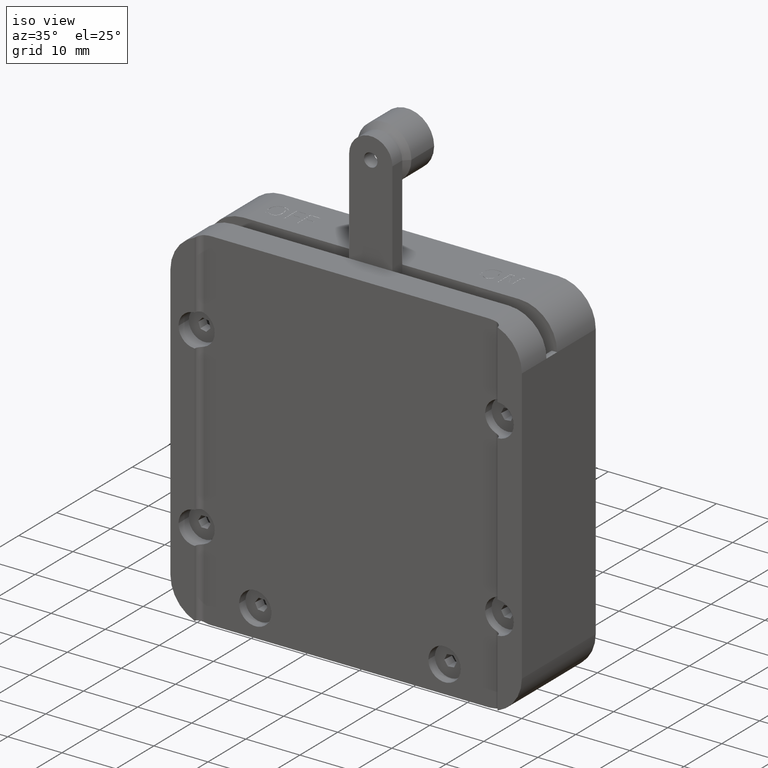
[diagram: clean part render]
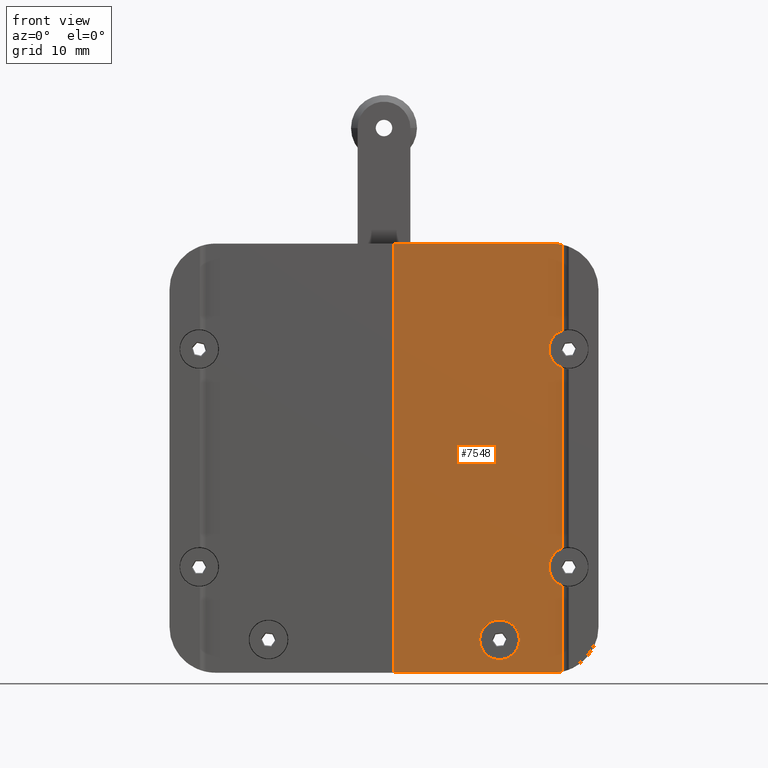
[diagram: tour spotlight — one face highlighted and labeled with its STEP entity id]
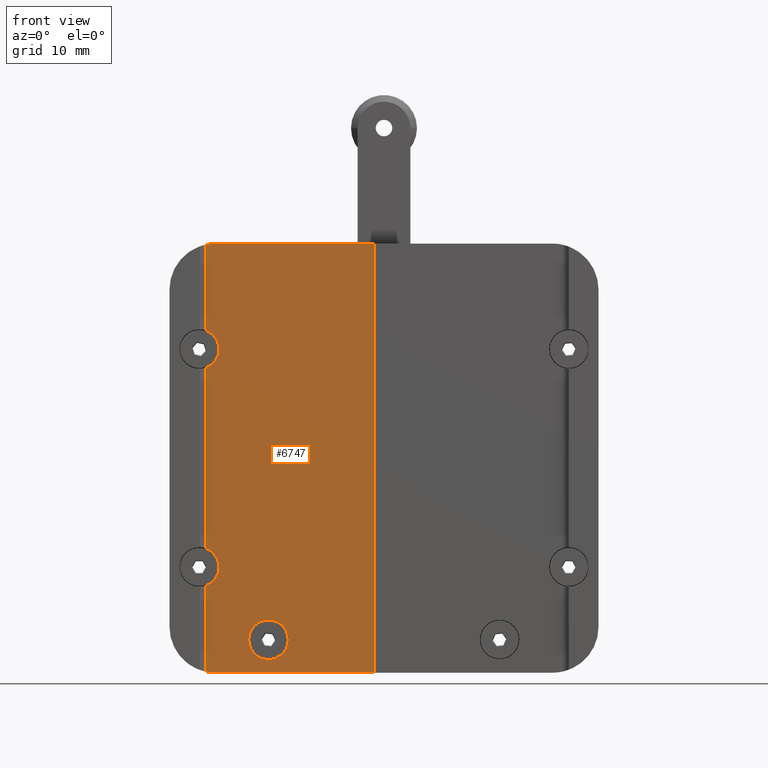
[diagram: tour spotlight — one face highlighted and labeled with its STEP entity id]
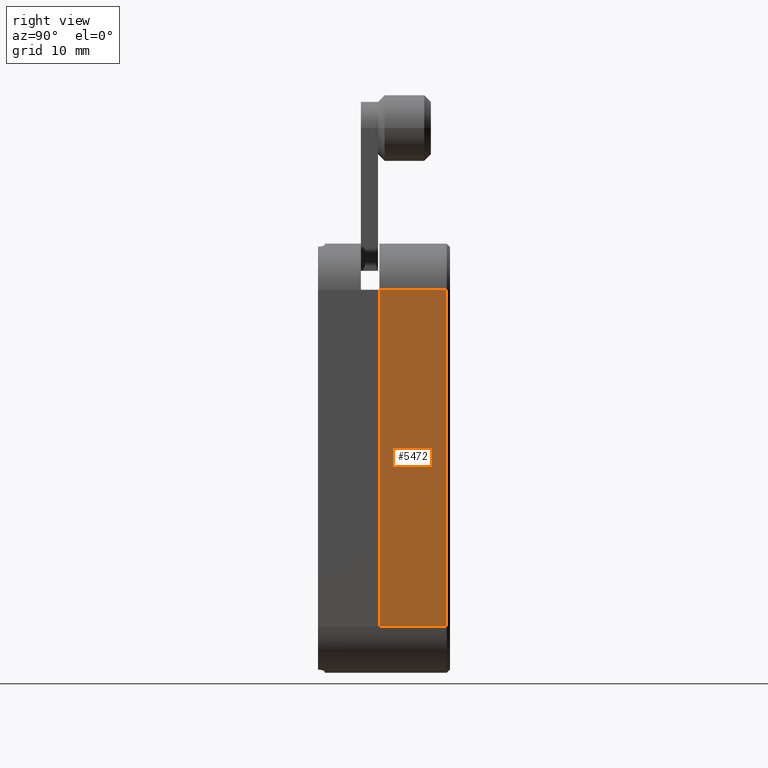
[diagram: tour spotlight — one face highlighted and labeled with its STEP entity id]
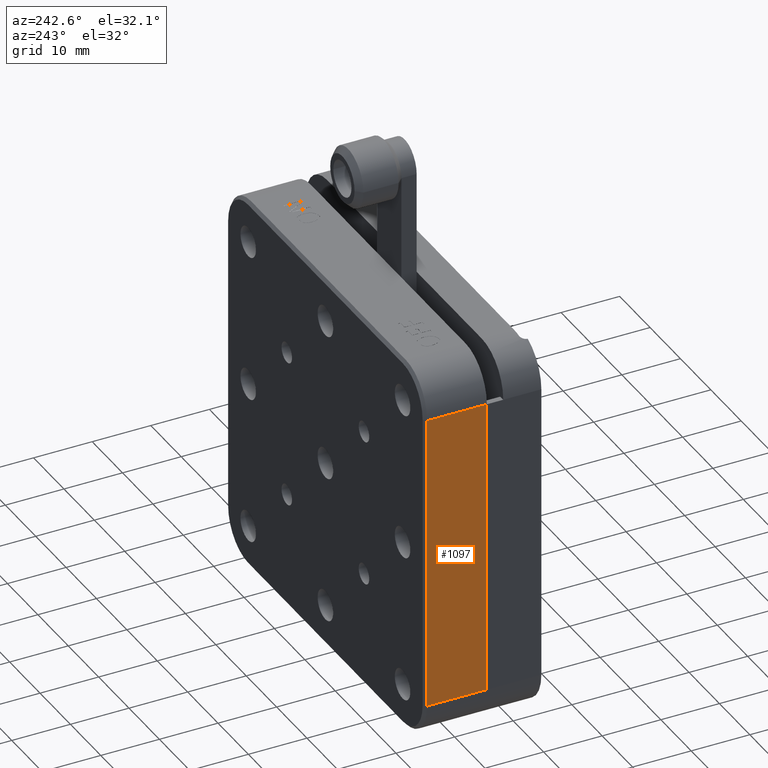
[diagram: tour spotlight — one face highlighted and labeled with its STEP entity id]
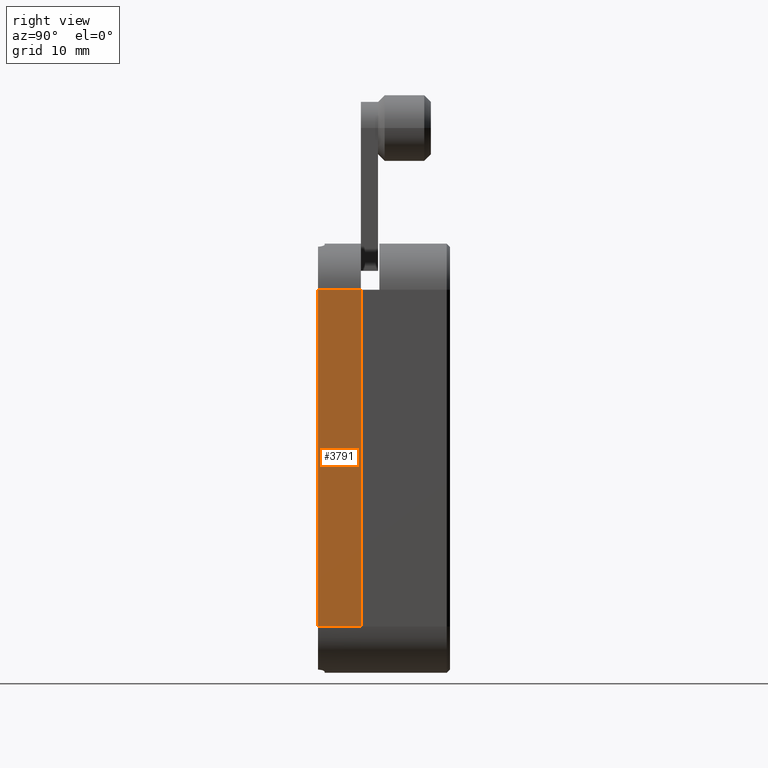
[diagram: tour spotlight — one face highlighted and labeled with its STEP entity id]
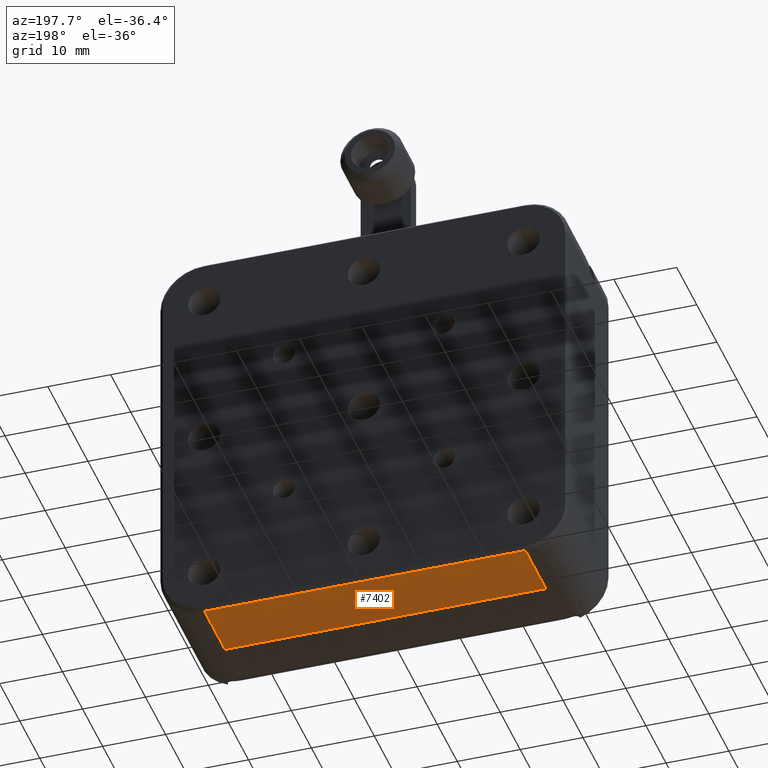
[diagram: tour spotlight — one face highlighted and labeled with its STEP entity id]
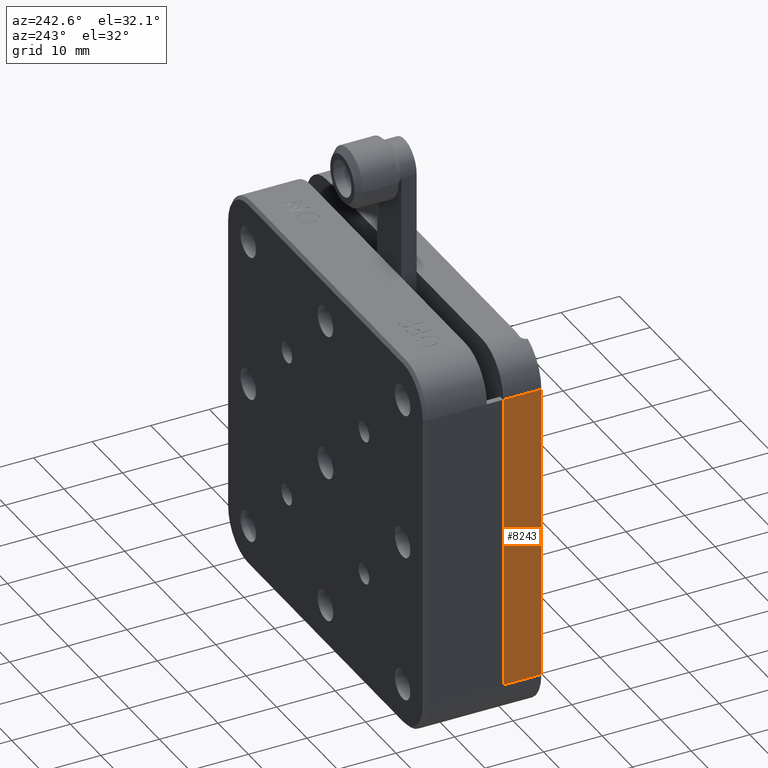
[diagram: tour spotlight — one face highlighted and labeled with its STEP entity id]
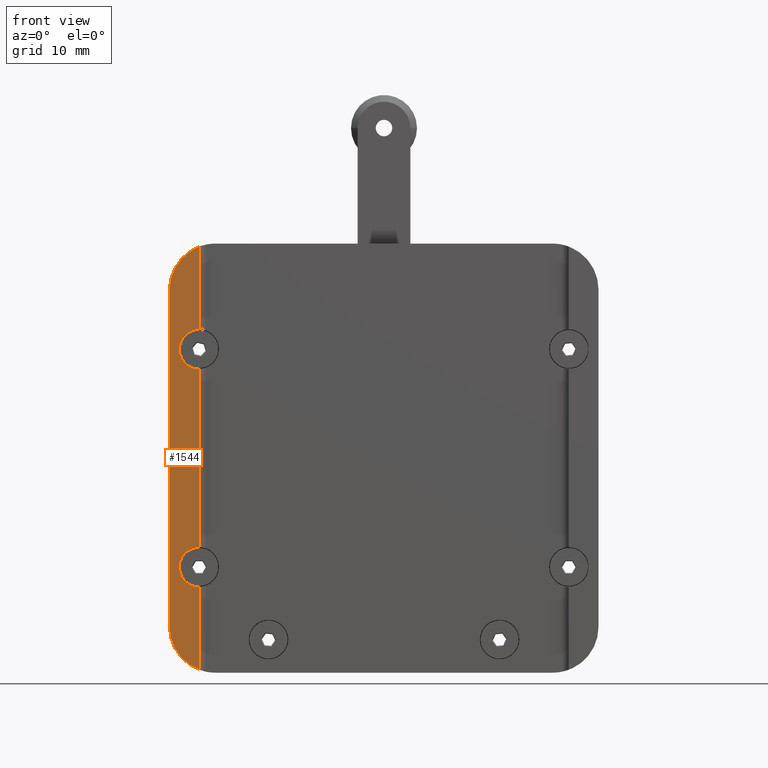
[diagram: tour spotlight — one face highlighted and labeled with its STEP entity id]
A machine part: a face-by-face anatomy tour. The part has 173 B-rep faces; the first image is the clean iso view, then the 8 largest visible faces are spotlighted one at a time (largest first), each with its STEP entity span.

Face 1 — front view, entity #7548. In plain terms, the highlighted planar face has unit normal (0, -1, 0).
Definition (entity closure, byte-faithful):
#83 = ORIENTED_EDGE ( 'NONE', *, *, #5253, .T. ) ;
#118 = CARTESIAN_POINT ( 'NONE',  ( 27.00000000000003900, -2.500000000000004400, 19.32842712474616300 ) ) ;
#214 = CIRCLE ( 'NONE', #3948, 3.000000000000006200 ) ;
#361 = AXIS2_PLACEMENT_3D ( 'NONE', #1779, #6818, #8061 ) ;
#461 = EDGE_CURVE ( 'NONE', #1115, #5707, #214, .T. ) ;
#571 = LINE ( 'NONE', #1066, #7114 ) ;
#582 = CARTESIAN_POINT ( 'NONE',  ( 25.00000000000001800, -2.500000000000003600, 16.49999999999994300 ) ) ;
#862 = AXIS2_PLACEMENT_3D ( 'NONE', #4422, #6230, #7494 ) ;
#888 = CIRCLE ( 'NONE', #361, 3.000000000000006200 ) ;
#953 = CARTESIAN_POINT ( 'NONE',  ( 1.499999999999950900, -2.500000000000004000, 32.49999999999999300 ) ) ;
#1030 = CARTESIAN_POINT ( 'NONE',  ( 20.49999999999993600, -2.500000000000004000, -27.49999999999998200 ) ) ;
#1066 = CARTESIAN_POINT ( 'NONE',  ( 28.00000000000003200, -2.500000000000005800, -32.50000000000003600 ) ) ;
#1115 = VERTEX_POINT ( 'NONE', #582 ) ;
#1147 = CARTESIAN_POINT ( 'NONE',  ( 17.50000000000000000, -2.500000000000004000, -27.49999999999995400 ) ) ;
#1223 = VERTEX_POINT ( 'NONE', #118 ) ;
#1225 = DIRECTION ( 'NONE',  ( 2.428612866367530500E-017, -1.000000000000000000, -3.252606517456514300E-019 ) ) ;
#1251 = CARTESIAN_POINT ( 'NONE',  ( 28.00000000000002500, -2.500000000000003600, 16.49999999999996400 ) ) ;
#1472 = ORIENTED_EDGE ( 'NONE', *, *, #7621, .T. ) ;
#1542 = EDGE_CURVE ( 'NONE', #4717, #6100, #6855, .T. ) ;
#1561 = CARTESIAN_POINT ( 'NONE',  ( -7.632783294297951200E-014, -2.500000000000003600, 5.421010862427522200E-017 ) ) ;
#1605 = DIRECTION ( 'NONE',  ( -1.000000000000000000, 2.428612866367522800E-017, 1.262079091408903800E-018 ) ) ;
#1618 = AXIS2_PLACEMENT_3D ( 'NONE', #1986, #3263, #2648 ) ;
#1664 = ORIENTED_EDGE ( 'NONE', *, *, #3231, .F. ) ;
#1779 = CARTESIAN_POINT ( 'NONE',  ( 28.00000000000002500, -2.500000000000003600, 16.49999999999996400 ) ) ;
#1916 = DIRECTION ( 'NONE',  ( 2.428612866367530500E-017, -1.000000000000000000, -3.252606517456514300E-019 ) ) ;
#1952 = VECTOR ( 'NONE', #2763, 1000.000000000000000 ) ;
#1986 = CARTESIAN_POINT ( 'NONE',  ( 28.00000000000002800, -2.500000000000002700, -16.49999999999995400 ) ) ;
#2000 = LINE ( 'NONE', #5931, #3384 ) ;
#2124 = CARTESIAN_POINT ( 'NONE',  ( 1.499999999999952700, -2.500000000000002700, 33.00000000000002100 ) ) ;
#2384 = FACE_OUTER_BOUND ( 'NONE', #5341, .T. ) ;
#2466 = EDGE_CURVE ( 'NONE', #7465, #6323, #571, .T. ) ;
#2508 = VECTOR ( 'NONE', #4566, 1000.000000000000000 ) ;
#2555 = CARTESIAN_POINT ( 'NONE',  ( 27.00000000000003900, -2.500000000000006200, -5.421010862427522200E-017 ) ) ;
#2648 = DIRECTION ( 'NONE',  ( 0.0000000000000000000, 0.0000000000000000000, -1.000000000000000000 ) ) ;
#2671 = ORIENTED_EDGE ( 'NONE', *, *, #7476, .T. ) ;
#2694 = CARTESIAN_POINT ( 'NONE',  ( 25.50000000000002100, -2.500000000000005800, -25.50000000000001400 ) ) ;
#2763 = DIRECTION ( 'NONE',  ( 1.097754699641572500E-018, -2.168404344971007400E-019, -1.000000000000000000 ) ) ;
#2775 = CARTESIAN_POINT ( 'NONE',  ( 25.50000000000001100, -2.500000000000003600, -32.49999999999999300 ) ) ;
#2777 = DIRECTION ( 'NONE',  ( 0.0000000000000000000, 0.0000000000000000000, -1.000000000000000000 ) ) ;
#2867 = ORIENTED_EDGE ( 'NONE', *, *, #461, .F. ) ;
#3026 = VECTOR ( 'NONE', #1605, 1000.000000000000000 ) ;
#3073 = CARTESIAN_POINT ( 'NONE',  ( 27.00000000000003200, -2.500000000000004000, -32.33739716558871200 ) ) ;
#3218 = DIRECTION ( 'NONE',  ( 0.0000000000000000000, 0.0000000000000000000, -1.000000000000000000 ) ) ;
#3229 = LINE ( 'NONE', #3737, #5700 ) ;
#3231 = EDGE_CURVE ( 'NONE', #5814, #7604, #6113, .T. ) ;
#3263 = DIRECTION ( 'NONE',  ( 2.428612866367530500E-017, -1.000000000000000000, -3.252606517456514300E-019 ) ) ;
#3384 = VECTOR ( 'NONE', #6544, 1000.000000000000000 ) ;
#3568 = CARTESIAN_POINT ( 'NONE',  ( 27.00000000000003900, -2.500000000000004400, 32.33739716558866200 ) ) ;
#3590 = ORIENTED_EDGE ( 'NONE', *, *, #4737, .F. ) ;
#3631 = LINE ( 'NONE', #2124, #1952 ) ;
#3735 = VERTEX_POINT ( 'NONE', #3568 ) ;
#3737 = CARTESIAN_POINT ( 'NONE',  ( 27.00000000000003900, -2.500000000000006200, -5.421010862427522200E-017 ) ) ;
#3793 = ORIENTED_EDGE ( 'NONE', *, *, #4114, .F. ) ;
#3839 = CARTESIAN_POINT ( 'NONE',  ( 25.00000000000002100, -2.500000000000002700, -16.49999999999996400 ) ) ;
#3948 = AXIS2_PLACEMENT_3D ( 'NONE', #1251, #1225, #5659 ) ;
#3982 = AXIS2_PLACEMENT_3D ( 'NONE', #1561, #7226, #7911 ) ;
#4027 = DIRECTION ( 'NONE',  ( 2.428612866367530500E-017, -1.000000000000000000, -3.252606517456514300E-019 ) ) ;
#4067 = CIRCLE ( 'NONE', #862, 3.000000000000006200 ) ;
#4114 = EDGE_CURVE ( 'NONE', #6671, #7889, #4067, .T. ) ;
#4125 = CARTESIAN_POINT ( 'NONE',  ( 27.00000000000003200, -2.500000000000005300, -19.32842712474614900 ) ) ;
#4224 = DIRECTION ( 'NONE',  ( 1.000000000000000000, -2.428612866367522800E-017, -1.262079091408903800E-018 ) ) ;
#4315 = CARTESIAN_POINT ( 'NONE',  ( 1.499999999999952700, -2.500000000000004900, -32.50000000000000000 ) ) ;
#4401 = CIRCLE ( 'NONE', #7666, 7.000000000000006200 ) ;
#4422 = CARTESIAN_POINT ( 'NONE',  ( 28.00000000000002800, -2.500000000000002700, -16.49999999999995400 ) ) ;
#4556 = ORIENTED_EDGE ( 'NONE', *, *, #2466, .T. ) ;
#4566 = DIRECTION ( 'NONE',  ( -1.097754699641572500E-018, 2.168404344971007400E-019, 1.000000000000000000 ) ) ;
#4652 = DIRECTION ( 'NONE',  ( 0.0000000000000000000, 0.0000000000000000000, -1.000000000000000000 ) ) ;
#4717 = VERTEX_POINT ( 'NONE', #3073 ) ;
#4727 = PLANE ( 'NONE',  #3982 ) ;
#4737 = EDGE_CURVE ( 'NONE', #1223, #1115, #888, .T. ) ;
#4755 = ORIENTED_EDGE ( 'NONE', *, *, #6530, .F. ) ;
#4767 = CARTESIAN_POINT ( 'NONE',  ( 14.50000000000006800, -2.500000000000004000, -27.49999999999998200 ) ) ;
#4880 = CARTESIAN_POINT ( 'NONE',  ( 28.00000000000001400, -2.500000000000004000, 32.49999999999999300 ) ) ;
#4920 = LINE ( 'NONE', #4880, #3026 ) ;
#4958 = DIRECTION ( 'NONE',  ( 0.0000000000000000000, 0.0000000000000000000, -1.000000000000000000 ) ) ;
#4971 = DIRECTION ( 'NONE',  ( -1.097754699641572500E-018, 2.168404344971007400E-019, 1.000000000000000000 ) ) ;
#5072 = CARTESIAN_POINT ( 'NONE',  ( 17.50000000000000000, -2.500000000000004000, -27.49999999999995400 ) ) ;
#5100 = EDGE_CURVE ( 'NONE', #7604, #5814, #6631, .T. ) ;
#5253 = EDGE_CURVE ( 'NONE', #1223, #3735, #2000, .T. ) ;
#5262 = CARTESIAN_POINT ( 'NONE',  ( 25.50000000000002100, -2.500000000000003600, 25.49999999999999600 ) ) ;
#5341 = EDGE_LOOP ( 'NONE', ( #3590, #83, #1472, #5910, #6931, #4556, #2671, #7147, #4755, #3793, #7160, #2867 ) ) ;
#5370 = FACE_BOUND ( 'NONE', #5682, .T. ) ;
#5593 = AXIS2_PLACEMENT_3D ( 'NONE', #1147, #5665, #4958 ) ;
#5659 = DIRECTION ( 'NONE',  ( 0.0000000000000000000, 0.0000000000000000000, -1.000000000000000000 ) ) ;
#5665 = DIRECTION ( 'NONE',  ( 2.428612866367530500E-017, -1.000000000000000000, -3.252606517456514300E-019 ) ) ;
#5682 = EDGE_LOOP ( 'NONE', ( #5868, #1664 ) ) ;
#5700 = VECTOR ( 'NONE', #4971, 1000.000000000000000 ) ;
#5707 = VERTEX_POINT ( 'NONE', #7016 ) ;
#5797 = CIRCLE ( 'NONE', #1618, 3.000000000000006200 ) ;
#5814 = VERTEX_POINT ( 'NONE', #4767 ) ;
#5868 = ORIENTED_EDGE ( 'NONE', *, *, #5100, .F. ) ;
#5881 = EDGE_CURVE ( 'NONE', #7806, #6209, #4920, .T. ) ;
#5910 = ORIENTED_EDGE ( 'NONE', *, *, #5881, .T. ) ;
#5931 = CARTESIAN_POINT ( 'NONE',  ( 27.00000000000003900, -2.500000000000006200, -5.421010862427522200E-017 ) ) ;
#6100 = VERTEX_POINT ( 'NONE', #4125 ) ;
#6113 = CIRCLE ( 'NONE', #5593, 2.999999999999933400 ) ;
#6209 = VERTEX_POINT ( 'NONE', #953 ) ;
#6229 = EDGE_CURVE ( 'NONE', #6209, #7465, #3631, .T. ) ;
#6230 = DIRECTION ( 'NONE',  ( 2.428612866367530500E-017, -1.000000000000000000, -3.252606517456514300E-019 ) ) ;
#6323 = VERTEX_POINT ( 'NONE', #2775 ) ;
#6508 = AXIS2_PLACEMENT_3D ( 'NONE', #5072, #1916, #3218 ) ;
#6518 = EDGE_CURVE ( 'NONE', #6671, #5707, #3229, .T. ) ;
#6530 = EDGE_CURVE ( 'NONE', #7889, #6100, #5797, .T. ) ;
#6544 = DIRECTION ( 'NONE',  ( -1.097754699641572500E-018, 2.168404344971007400E-019, 1.000000000000000000 ) ) ;
#6631 = CIRCLE ( 'NONE', #6508, 2.999999999999933400 ) ;
#6648 = CIRCLE ( 'NONE', #8046, 7.000000000000006200 ) ;
#6671 = VERTEX_POINT ( 'NONE', #7662 ) ;
#6801 = CARTESIAN_POINT ( 'NONE',  ( 25.50000000000001800, -2.500000000000003600, 32.49999999999999300 ) ) ;
#6818 = DIRECTION ( 'NONE',  ( 2.428612866367530500E-017, -1.000000000000000000, -3.252606517456514300E-019 ) ) ;
#6855 = LINE ( 'NONE', #2555, #2508 ) ;
#6931 = ORIENTED_EDGE ( 'NONE', *, *, #6229, .T. ) ;
#7016 = CARTESIAN_POINT ( 'NONE',  ( 27.00000000000002500, -2.500000000000002700, 13.67157287525377300 ) ) ;
#7112 = DIRECTION ( 'NONE',  ( 2.428612866367530500E-017, -1.000000000000000000, -3.252606517456514300E-019 ) ) ;
#7114 = VECTOR ( 'NONE', #4224, 1000.000000000000000 ) ;
#7147 = ORIENTED_EDGE ( 'NONE', *, *, #1542, .T. ) ;
#7160 = ORIENTED_EDGE ( 'NONE', *, *, #6518, .T. ) ;
#7226 = DIRECTION ( 'NONE',  ( 2.428612866367530500E-017, -1.000000000000000000, 2.168404344971007700E-019 ) ) ;
#7465 = VERTEX_POINT ( 'NONE', #4315 ) ;
#7476 = EDGE_CURVE ( 'NONE', #6323, #4717, #4401, .T. ) ;
#7494 = DIRECTION ( 'NONE',  ( 0.0000000000000000000, 0.0000000000000000000, -1.000000000000000000 ) ) ;
#7548 = ADVANCED_FACE ( 'NONE', ( #5370, #2384 ), #4727, .T. ) ;
#7604 = VERTEX_POINT ( 'NONE', #1030 ) ;
#7621 = EDGE_CURVE ( 'NONE', #3735, #7806, #6648, .T. ) ;
#7662 = CARTESIAN_POINT ( 'NONE',  ( 27.00000000000002500, -2.500000000000002700, -13.67157287525376200 ) ) ;
#7666 = AXIS2_PLACEMENT_3D ( 'NONE', #2694, #7112, #4652 ) ;
#7806 = VERTEX_POINT ( 'NONE', #6801 ) ;
#7889 = VERTEX_POINT ( 'NONE', #3839 ) ;
#7911 = DIRECTION ( 'NONE',  ( 1.097754699641572500E-018, -2.168404344971007400E-019, -1.000000000000000000 ) ) ;
#8046 = AXIS2_PLACEMENT_3D ( 'NONE', #5262, #4027, #2777 ) ;
#8061 = DIRECTION ( 'NONE',  ( 0.0000000000000000000, 0.0000000000000000000, -1.000000000000000000 ) ) ;

Face 2 — front view, entity #6747. In plain terms, the highlighted planar face has unit normal (0, -1, 0).
Definition (entity closure, byte-faithful):
#94 = EDGE_CURVE ( 'NONE', #7858, #6640, #5591, .T. ) ;
#99 = CARTESIAN_POINT ( 'NONE',  ( -28.00000000000001100, -2.500000000000008400, 16.49999999999995700 ) ) ;
#128 = AXIS2_PLACEMENT_3D ( 'NONE', #3754, #3138, #659 ) ;
#178 = CARTESIAN_POINT ( 'NONE',  ( 28.00000000000004300, -2.500000000000008400, 32.50000000000000700 ) ) ;
#228 = CARTESIAN_POINT ( 'NONE',  ( -27.00000000000000400, -2.500000000000008900, -13.67157287525377300 ) ) ;
#320 = DIRECTION ( 'NONE',  ( 1.000000000000000000, 8.673617379884027800E-018, 5.090668012998340200E-019 ) ) ;
#455 = CARTESIAN_POINT ( 'NONE',  ( -28.00000000000001800, -2.500000000000009800, -16.49999999999995700 ) ) ;
#460 = AXIS2_PLACEMENT_3D ( 'NONE', #7078, #665, #7668 ) ;
#601 = AXIS2_PLACEMENT_3D ( 'NONE', #7190, #5188, #4613 ) ;
#635 = DIRECTION ( 'NONE',  ( 0.0000000000000000000, 0.0000000000000000000, -1.000000000000000000 ) ) ;
#659 = DIRECTION ( 'NONE',  ( 0.0000000000000000000, 0.0000000000000000000, -1.000000000000000000 ) ) ;
#665 = DIRECTION ( 'NONE',  ( 1.734723475976804800E-018, -1.000000000000000000, -7.589415207398521400E-019 ) ) ;
#734 = VERTEX_POINT ( 'NONE', #2343 ) ;
#757 = DIRECTION ( 'NONE',  ( 0.0000000000000000000, 0.0000000000000000000, -1.000000000000000000 ) ) ;
#871 = DIRECTION ( 'NONE',  ( -2.286988957586610000E-019, -7.589415207398527200E-019, -1.000000000000000000 ) ) ;
#1007 = LINE ( 'NONE', #4680, #2506 ) ;
#1121 = CIRCLE ( 'NONE', #3268, 2.999999999999999100 ) ;
#1153 = CARTESIAN_POINT ( 'NONE',  ( -20.50000000000000000, -2.500000000000008000, -27.49999999999995700 ) ) ;
#1158 = EDGE_CURVE ( 'NONE', #6752, #3822, #4293, .T. ) ;
#1245 = CARTESIAN_POINT ( 'NONE',  ( -28.00000000000001100, -2.500000000000008400, 16.49999999999995700 ) ) ;
#1249 = AXIS2_PLACEMENT_3D ( 'NONE', #1245, #3782, #635 ) ;
#1282 = VERTEX_POINT ( 'NONE', #3665 ) ;
#1408 = CARTESIAN_POINT ( 'NONE',  ( -27.00000000000002500, -2.500000000000008400, -32.33739716558869800 ) ) ;
#1575 = VECTOR ( 'NONE', #3226, 1000.000000000000000 ) ;
#1579 = EDGE_CURVE ( 'NONE', #3843, #6824, #5098, .T. ) ;
#1680 = AXIS2_PLACEMENT_3D ( 'NONE', #4371, #5692, #8254 ) ;
#1709 = ORIENTED_EDGE ( 'NONE', *, *, #3869, .T. ) ;
#1726 = DIRECTION ( 'NONE',  ( 0.0000000000000000000, 0.0000000000000000000, -1.000000000000000000 ) ) ;
#1737 = CARTESIAN_POINT ( 'NONE',  ( -25.00000000000001400, -2.500000000000008400, 16.49999999999995700 ) ) ;
#1796 = DIRECTION ( 'NONE',  ( -2.286988957586610000E-019, -7.589415207398527200E-019, -1.000000000000000000 ) ) ;
#1819 = ORIENTED_EDGE ( 'NONE', *, *, #4349, .T. ) ;
#1946 = VERTEX_POINT ( 'NONE', #228 ) ;
#1972 = DIRECTION ( 'NONE',  ( 1.734723475976804800E-018, -1.000000000000000000, -7.589415207398521400E-019 ) ) ;
#2117 = CARTESIAN_POINT ( 'NONE',  ( -27.00000000000000400, -2.500000000000008400, 19.32842712474615600 ) ) ;
#2146 = ORIENTED_EDGE ( 'NONE', *, *, #1158, .F. ) ;
#2202 = VECTOR ( 'NONE', #871, 1000.000000000000000 ) ;
#2284 = CIRCLE ( 'NONE', #5979, 2.999999999999999100 ) ;
#2290 = EDGE_LOOP ( 'NONE', ( #7673, #3984, #2401, #4323, #2799, #3103, #6761, #1709, #2901, #4094, #1819, #3794 ) ) ;
#2294 = VECTOR ( 'NONE', #7014, 1000.000000000000000 ) ;
#2343 = CARTESIAN_POINT ( 'NONE',  ( -25.50000000000002500, -2.500000000000009300, -32.50000000000001400 ) ) ;
#2377 = VERTEX_POINT ( 'NONE', #6778 ) ;
#2401 = ORIENTED_EDGE ( 'NONE', *, *, #7749, .F. ) ;
#2417 = CARTESIAN_POINT ( 'NONE',  ( -27.00000000000001400, -2.500000000000009300, 0.0000000000000000000 ) ) ;
#2506 = VECTOR ( 'NONE', #320, 1000.000000000000000 ) ;
#2528 = CARTESIAN_POINT ( 'NONE',  ( -27.00000000000001800, -2.500000000000008400, -19.32842712474616300 ) ) ;
#2587 = EDGE_LOOP ( 'NONE', ( #2146, #5109 ) ) ;
#2799 = ORIENTED_EDGE ( 'NONE', *, *, #94, .T. ) ;
#2901 = ORIENTED_EDGE ( 'NONE', *, *, #6661, .T. ) ;
#3048 = CARTESIAN_POINT ( 'NONE',  ( -28.00000000000001800, -2.500000000000009800, -16.49999999999995700 ) ) ;
#3103 = ORIENTED_EDGE ( 'NONE', *, *, #6986, .T. ) ;
#3138 = DIRECTION ( 'NONE',  ( 1.734723475976804800E-018, -1.000000000000000000, -7.589415207398521400E-019 ) ) ;
#3226 = DIRECTION ( 'NONE',  ( 2.286988957586610000E-019, 7.589415207398527200E-019, 1.000000000000000000 ) ) ;
#3268 = AXIS2_PLACEMENT_3D ( 'NONE', #99, #4568, #757 ) ;
#3269 = CARTESIAN_POINT ( 'NONE',  ( -17.50000000000000000, -2.500000000000008000, -27.50000000000000700 ) ) ;
#3278 = CARTESIAN_POINT ( 'NONE',  ( -1.499999999999971800, -2.500000000000008000, 33.00000000000000000 ) ) ;
#3301 = DIRECTION ( 'NONE',  ( 0.0000000000000000000, 0.0000000000000000000, -1.000000000000000000 ) ) ;
#3665 = CARTESIAN_POINT ( 'NONE',  ( -27.00000000000000400, -2.500000000000007500, 13.67157287525376600 ) ) ;
#3754 = CARTESIAN_POINT ( 'NONE',  ( -25.50000000000002100, -2.500000000000007100, -25.50000000000001800 ) ) ;
#3782 = DIRECTION ( 'NONE',  ( 1.734723475976804800E-018, -1.000000000000000000, -7.589415207398521400E-019 ) ) ;
#3794 = ORIENTED_EDGE ( 'NONE', *, *, #7799, .F. ) ;
#3818 = VECTOR ( 'NONE', #7605, 1000.000000000000000 ) ;
#3822 = VERTEX_POINT ( 'NONE', #1153 ) ;
#3843 = VERTEX_POINT ( 'NONE', #4497 ) ;
#3869 = EDGE_CURVE ( 'NONE', #3911, #7236, #7504, .T. ) ;
#3911 = VERTEX_POINT ( 'NONE', #5191 ) ;
#3984 = ORIENTED_EDGE ( 'NONE', *, *, #8161, .T. ) ;
#4094 = ORIENTED_EDGE ( 'NONE', *, *, #1579, .T. ) ;
#4205 = EDGE_CURVE ( 'NONE', #1282, #7579, #1121, .T. ) ;
#4212 = FACE_BOUND ( 'NONE', #2587, .T. ) ;
#4293 = CIRCLE ( 'NONE', #4843, 2.999999999999999100 ) ;
#4323 = ORIENTED_EDGE ( 'NONE', *, *, #7100, .F. ) ;
#4349 = EDGE_CURVE ( 'NONE', #6824, #7656, #6495, .T. ) ;
#4371 = CARTESIAN_POINT ( 'NONE',  ( -17.50000000000000000, -2.500000000000008000, -27.50000000000000700 ) ) ;
#4497 = CARTESIAN_POINT ( 'NONE',  ( -25.50000000000002100, -2.500000000000008400, 32.49999999999995000 ) ) ;
#4568 = DIRECTION ( 'NONE',  ( 1.734723475976804800E-018, -1.000000000000000000, -7.589415207398521400E-019 ) ) ;
#4613 = DIRECTION ( 'NONE',  ( -2.286988957586610000E-019, -7.589415207398527200E-019, -1.000000000000000000 ) ) ;
#4680 = CARTESIAN_POINT ( 'NONE',  ( 28.00000000000006400, -2.500000000000009300, -32.50000000000004300 ) ) ;
#4702 = CIRCLE ( 'NONE', #1249, 2.999999999999999100 ) ;
#4843 = AXIS2_PLACEMENT_3D ( 'NONE', #3269, #1972, #3301 ) ;
#5098 = CIRCLE ( 'NONE', #460, 7.000000000000002700 ) ;
#5106 = LINE ( 'NONE', #178, #2294 ) ;
#5109 = ORIENTED_EDGE ( 'NONE', *, *, #7567, .F. ) ;
#5188 = DIRECTION ( 'NONE',  ( 1.734723475976804800E-018, -1.000000000000000000, 7.589415207398527200E-019 ) ) ;
#5191 = CARTESIAN_POINT ( 'NONE',  ( -1.499999999999968500, -2.500000000000007100, -32.50000000000001400 ) ) ;
#5241 = CARTESIAN_POINT ( 'NONE',  ( -14.50000000000000200, -2.500000000000008000, -27.49999999999995700 ) ) ;
#5281 = VECTOR ( 'NONE', #1796, 1000.000000000000000 ) ;
#5294 = CARTESIAN_POINT ( 'NONE',  ( -27.00000000000001400, -2.500000000000009300, 0.0000000000000000000 ) ) ;
#5516 = DIRECTION ( 'NONE',  ( 1.734723475976804800E-018, -1.000000000000000000, -7.589415207398521400E-019 ) ) ;
#5591 = LINE ( 'NONE', #5294, #2202 ) ;
#5692 = DIRECTION ( 'NONE',  ( 1.734723475976804800E-018, -1.000000000000000000, -7.589415207398521400E-019 ) ) ;
#5896 = FACE_OUTER_BOUND ( 'NONE', #2290, .T. ) ;
#5979 = AXIS2_PLACEMENT_3D ( 'NONE', #3048, #5516, #1726 ) ;
#6231 = AXIS2_PLACEMENT_3D ( 'NONE', #455, #7435, #8187 ) ;
#6377 = CARTESIAN_POINT ( 'NONE',  ( -27.00000000000000700, -2.500000000000007500, 32.33739716558866900 ) ) ;
#6495 = LINE ( 'NONE', #7514, #3818 ) ;
#6640 = VERTEX_POINT ( 'NONE', #1408 ) ;
#6661 = EDGE_CURVE ( 'NONE', #7236, #3843, #5106, .T. ) ;
#6747 = ADVANCED_FACE ( 'NONE', ( #5896, #4212 ), #7124, .T. ) ;
#6752 = VERTEX_POINT ( 'NONE', #5241 ) ;
#6761 = ORIENTED_EDGE ( 'NONE', *, *, #7255, .T. ) ;
#6778 = CARTESIAN_POINT ( 'NONE',  ( -25.00000000000002100, -2.500000000000009800, -16.49999999999996800 ) ) ;
#6824 = VERTEX_POINT ( 'NONE', #6377 ) ;
#6986 = EDGE_CURVE ( 'NONE', #6640, #734, #7950, .T. ) ;
#7014 = DIRECTION ( 'NONE',  ( -1.000000000000000000, -8.673617379884027800E-018, -5.090668012998340200E-019 ) ) ;
#7078 = CARTESIAN_POINT ( 'NONE',  ( -25.50000000000002500, -2.500000000000009800, 25.50000000000000700 ) ) ;
#7100 = EDGE_CURVE ( 'NONE', #7858, #2377, #2284, .T. ) ;
#7124 = PLANE ( 'NONE',  #601 ) ;
#7190 = CARTESIAN_POINT ( 'NONE',  ( 1.734723475976807100E-014, -2.500000000000009300, -1.626303258728256700E-016 ) ) ;
#7234 = LINE ( 'NONE', #2417, #5281 ) ;
#7236 = VERTEX_POINT ( 'NONE', #7706 ) ;
#7255 = EDGE_CURVE ( 'NONE', #734, #3911, #1007, .T. ) ;
#7435 = DIRECTION ( 'NONE',  ( 1.734723475976804800E-018, -1.000000000000000000, -7.589415207398521400E-019 ) ) ;
#7504 = LINE ( 'NONE', #3278, #1575 ) ;
#7514 = CARTESIAN_POINT ( 'NONE',  ( -27.00000000000001400, -2.500000000000009300, 0.0000000000000000000 ) ) ;
#7567 = EDGE_CURVE ( 'NONE', #3822, #6752, #7645, .T. ) ;
#7579 = VERTEX_POINT ( 'NONE', #1737 ) ;
#7605 = DIRECTION ( 'NONE',  ( -2.286988957586610000E-019, -7.589415207398527200E-019, -1.000000000000000000 ) ) ;
#7645 = CIRCLE ( 'NONE', #1680, 2.999999999999999100 ) ;
#7656 = VERTEX_POINT ( 'NONE', #2117 ) ;
#7668 = DIRECTION ( 'NONE',  ( 0.0000000000000000000, 0.0000000000000000000, -1.000000000000000000 ) ) ;
#7673 = ORIENTED_EDGE ( 'NONE', *, *, #4205, .F. ) ;
#7706 = CARTESIAN_POINT ( 'NONE',  ( -1.499999999999975400, -2.500000000000008400, 32.50000000000002100 ) ) ;
#7749 = EDGE_CURVE ( 'NONE', #2377, #1946, #8154, .T. ) ;
#7799 = EDGE_CURVE ( 'NONE', #7579, #7656, #4702, .T. ) ;
#7858 = VERTEX_POINT ( 'NONE', #2528 ) ;
#7950 = CIRCLE ( 'NONE', #128, 7.000000000000002700 ) ;
#8154 = CIRCLE ( 'NONE', #6231, 2.999999999999999100 ) ;
#8161 = EDGE_CURVE ( 'NONE', #1282, #1946, #7234, .T. ) ;
#8187 = DIRECTION ( 'NONE',  ( 0.0000000000000000000, 0.0000000000000000000, -1.000000000000000000 ) ) ;
#8254 = DIRECTION ( 'NONE',  ( 0.0000000000000000000, 0.0000000000000000000, -1.000000000000000000 ) ) ;

Face 3 — right view, entity #5472. In plain terms, the highlighted planar face has unit normal (-1, 0, 0).
Definition (entity closure, byte-faithful):
#314 = VERTEX_POINT ( 'NONE', #3821 ) ;
#475 = DIRECTION ( 'NONE',  ( 0.0000000000000000000, 0.0000000000000000000, -1.000000000000000000 ) ) ;
#848 = CARTESIAN_POINT ( 'NONE',  ( 32.49999999999994300, 16.50000000000000000, 25.49999999999999300 ) ) ;
#885 = EDGE_LOOP ( 'NONE', ( #4003, #2683, #5891, #1612 ) ) ;
#1135 = VERTEX_POINT ( 'NONE', #1258 ) ;
#1258 = CARTESIAN_POINT ( 'NONE',  ( 32.49999999999994300, 16.00000000000002800, 25.49999999999999300 ) ) ;
#1592 = LINE ( 'NONE', #7461, #3386 ) ;
#1612 = ORIENTED_EDGE ( 'NONE', *, *, #5914, .T. ) ;
#1627 = VECTOR ( 'NONE', #7744, 1000.000000000000000 ) ;
#2683 = ORIENTED_EDGE ( 'NONE', *, *, #6127, .T. ) ;
#3127 = LINE ( 'NONE', #5052, #6000 ) ;
#3386 = VECTOR ( 'NONE', #5514, 1000.000000000000000 ) ;
#3503 = DIRECTION ( 'NONE',  ( 0.0000000000000000000, -0.0000000000000000000, 1.000000000000000000 ) ) ;
#3746 = EDGE_CURVE ( 'NONE', #7024, #6085, #1592, .T. ) ;
#3821 = CARTESIAN_POINT ( 'NONE',  ( 32.49999999999994300, 5.800000000000002500, 25.49999999999999300 ) ) ;
#4003 = ORIENTED_EDGE ( 'NONE', *, *, #3746, .T. ) ;
#4464 = CARTESIAN_POINT ( 'NONE',  ( 32.49999999999994300, 5.800000000000002500, -25.50000000000001100 ) ) ;
#4972 = CARTESIAN_POINT ( 'NONE',  ( 32.49999999999994300, 16.50000000000000000, 32.49999999999999300 ) ) ;
#5052 = CARTESIAN_POINT ( 'NONE',  ( 32.49999999999994300, 5.800000000000002500, 32.49999999999999300 ) ) ;
#5472 = ADVANCED_FACE ( 'NONE', ( #6298 ), #8256, .F. ) ;
#5514 = DIRECTION ( 'NONE',  ( -0.0000000000000000000, 1.000000000000000000, -0.0000000000000000000 ) ) ;
#5891 = ORIENTED_EDGE ( 'NONE', *, *, #6732, .T. ) ;
#5914 = EDGE_CURVE ( 'NONE', #314, #7024, #3127, .T. ) ;
#5974 = CARTESIAN_POINT ( 'NONE',  ( 32.49999999999994300, 16.00000000000002800, 25.49999999999999300 ) ) ;
#6000 = VECTOR ( 'NONE', #475, 1000.000000000000000 ) ;
#6085 = VERTEX_POINT ( 'NONE', #6448 ) ;
#6127 = EDGE_CURVE ( 'NONE', #6085, #1135, #6672, .T. ) ;
#6298 = FACE_OUTER_BOUND ( 'NONE', #885, .T. ) ;
#6388 = LINE ( 'NONE', #848, #1627 ) ;
#6448 = CARTESIAN_POINT ( 'NONE',  ( 32.49999999999994300, 16.00000000000002800, -25.50000000000001100 ) ) ;
#6672 = LINE ( 'NONE', #5974, #7962 ) ;
#6732 = EDGE_CURVE ( 'NONE', #1135, #314, #6388, .T. ) ;
#6897 = DIRECTION ( 'NONE',  ( 0.0000000000000000000, 0.0000000000000000000, 1.000000000000000000 ) ) ;
#7024 = VERTEX_POINT ( 'NONE', #4464 ) ;
#7461 = CARTESIAN_POINT ( 'NONE',  ( 32.49999999999994300, 16.50000000000000000, -25.50000000000001100 ) ) ;
#7744 = DIRECTION ( 'NONE',  ( 0.0000000000000000000, -1.000000000000000000, 0.0000000000000000000 ) ) ;
#7763 = AXIS2_PLACEMENT_3D ( 'NONE', #4972, #8124, #6897 ) ;
#7962 = VECTOR ( 'NONE', #3503, 1000.000000000000000 ) ;
#8124 = DIRECTION ( 'NONE',  ( -1.000000000000000000, 0.0000000000000000000, 0.0000000000000000000 ) ) ;
#8256 = PLANE ( 'NONE',  #7763 ) ;

Face 4 — auxiliary view, entity #1097. In plain terms, the highlighted planar face has unit normal (1, -0, 0).
Definition (entity closure, byte-faithful):
#57 = VERTEX_POINT ( 'NONE', #7156 ) ;
#366 = CARTESIAN_POINT ( 'NONE',  ( -32.50000000000005700, 16.00000000000002800, -25.50000000000000400 ) ) ;
#397 = VECTOR ( 'NONE', #4889, 1000.000000000000000 ) ;
#805 = VERTEX_POINT ( 'NONE', #1180 ) ;
#1097 = ADVANCED_FACE ( 'NONE', ( #2787 ), #1801, .F. ) ;
#1151 = DIRECTION ( 'NONE',  ( 0.0000000000000000000, 0.0000000000000000000, -1.000000000000000000 ) ) ;
#1180 = CARTESIAN_POINT ( 'NONE',  ( -32.50000000000005700, 5.800000000000002500, 25.50000000000000000 ) ) ;
#1201 = CARTESIAN_POINT ( 'NONE',  ( -32.50000000000005700, 16.50000000000000000, 32.50000000000000000 ) ) ;
#1801 = PLANE ( 'NONE',  #7694 ) ;
#2107 = LINE ( 'NONE', #366, #397 ) ;
#2468 = DIRECTION ( 'NONE',  ( -0.0000000000000000000, -1.000000000000000000, 0.0000000000000000000 ) ) ;
#2772 = DIRECTION ( 'NONE',  ( -0.0000000000000000000, -0.0000000000000000000, 1.000000000000000000 ) ) ;
#2787 = FACE_OUTER_BOUND ( 'NONE', #8086, .T. ) ;
#2804 = ORIENTED_EDGE ( 'NONE', *, *, #5438, .T. ) ;
#2884 = ORIENTED_EDGE ( 'NONE', *, *, #5470, .T. ) ;
#3119 = CARTESIAN_POINT ( 'NONE',  ( -32.50000000000005700, 16.50000000000000000, -25.50000000000000400 ) ) ;
#3174 = EDGE_CURVE ( 'NONE', #805, #57, #5429, .T. ) ;
#3339 = VECTOR ( 'NONE', #2772, 1000.000000000000000 ) ;
#3738 = LINE ( 'NONE', #5943, #3339 ) ;
#4330 = VERTEX_POINT ( 'NONE', #5561 ) ;
#4889 = DIRECTION ( 'NONE',  ( 0.0000000000000000000, 0.0000000000000000000, -1.000000000000000000 ) ) ;
#5345 = VECTOR ( 'NONE', #6088, 1000.000000000000000 ) ;
#5429 = LINE ( 'NONE', #5475, #5345 ) ;
#5438 = EDGE_CURVE ( 'NONE', #4330, #805, #3738, .T. ) ;
#5470 = EDGE_CURVE ( 'NONE', #6057, #4330, #6972, .T. ) ;
#5475 = CARTESIAN_POINT ( 'NONE',  ( -32.50000000000005700, 16.50000000000000000, 25.50000000000000000 ) ) ;
#5561 = CARTESIAN_POINT ( 'NONE',  ( -32.50000000000005700, 5.800000000000002500, -25.50000000000000400 ) ) ;
#5943 = CARTESIAN_POINT ( 'NONE',  ( -32.50000000000005700, 5.800000000000002500, 32.50000000000000000 ) ) ;
#6057 = VERTEX_POINT ( 'NONE', #7822 ) ;
#6088 = DIRECTION ( 'NONE',  ( 0.0000000000000000000, 1.000000000000000000, -0.0000000000000000000 ) ) ;
#6202 = VECTOR ( 'NONE', #2468, 1000.000000000000000 ) ;
#6464 = ORIENTED_EDGE ( 'NONE', *, *, #3174, .T. ) ;
#6972 = LINE ( 'NONE', #3119, #6202 ) ;
#7156 = CARTESIAN_POINT ( 'NONE',  ( -32.50000000000005700, 16.00000000000002800, 25.50000000000000000 ) ) ;
#7300 = EDGE_CURVE ( 'NONE', #57, #6057, #2107, .T. ) ;
#7694 = AXIS2_PLACEMENT_3D ( 'NONE', #1201, #8177, #1151 ) ;
#7822 = CARTESIAN_POINT ( 'NONE',  ( -32.50000000000005700, 16.00000000000002800, -25.50000000000000400 ) ) ;
#7901 = ORIENTED_EDGE ( 'NONE', *, *, #7300, .T. ) ;
#8086 = EDGE_LOOP ( 'NONE', ( #6464, #7901, #2884, #2804 ) ) ;
#8177 = DIRECTION ( 'NONE',  ( 1.000000000000000000, -0.0000000000000000000, 0.0000000000000000000 ) ) ;

Face 5 — right view, entity #3791. In plain terms, the highlighted planar face has unit normal (1, -0, -0).
Definition (entity closure, byte-faithful):
#529 = LINE ( 'NONE', #1705, #3333 ) ;
#964 = FACE_OUTER_BOUND ( 'NONE', #7505, .T. ) ;
#965 = VERTEX_POINT ( 'NONE', #2225 ) ;
#1265 = ORIENTED_EDGE ( 'NONE', *, *, #8101, .T. ) ;
#1659 = DIRECTION ( 'NONE',  ( -1.074884810065706400E-018, 6.938893903907223800E-018, 1.000000000000000000 ) ) ;
#1705 = CARTESIAN_POINT ( 'NONE',  ( 32.50000000000004300, -3.750000000000004400, 25.49999999999999600 ) ) ;
#1751 = DIRECTION ( 'NONE',  ( -1.056521135769233200E-016, 1.084202172485503700E-019, -1.000000000000000000 ) ) ;
#1766 = DIRECTION ( 'NONE',  ( 2.428612866367530500E-017, -1.000000000000000000, -3.252606517456514300E-019 ) ) ;
#1818 = VECTOR ( 'NONE', #1871, 1000.000000000000000 ) ;
#1871 = DIRECTION ( 'NONE',  ( 1.074884810065706400E-018, -6.938893903907223800E-018, -1.000000000000000000 ) ) ;
#2137 = CARTESIAN_POINT ( 'NONE',  ( 32.50000000000004300, -3.750000000000000400, -25.50000000000001800 ) ) ;
#2225 = CARTESIAN_POINT ( 'NONE',  ( 32.50000000000004300, 2.999999999999999600, -25.50000000000001400 ) ) ;
#2308 = CARTESIAN_POINT ( 'NONE',  ( 32.50000000000004300, -3.750000000000003600, 32.50000000000000000 ) ) ;
#2361 = DIRECTION ( 'NONE',  ( 1.000000000000000000, -2.255140518769842800E-017, -1.056521135769233200E-016 ) ) ;
#2565 = CARTESIAN_POINT ( 'NONE',  ( 32.50000000000004300, 3.000000000000000900, 25.50000000000000000 ) ) ;
#2896 = VERTEX_POINT ( 'NONE', #7509 ) ;
#2914 = CARTESIAN_POINT ( 'NONE',  ( 32.50000000000004300, -3.500000000000006200, -25.50000000000002500 ) ) ;
#2980 = ORIENTED_EDGE ( 'NONE', *, *, #5320, .T. ) ;
#3045 = VERTEX_POINT ( 'NONE', #2914 ) ;
#3333 = VECTOR ( 'NONE', #1766, 1000.000000000000000 ) ;
#3490 = LINE ( 'NONE', #7555, #1818 ) ;
#3791 = ADVANCED_FACE ( 'NONE', ( #964 ), #5482, .T. ) ;
#4117 = AXIS2_PLACEMENT_3D ( 'NONE', #2308, #2361, #1751 ) ;
#4485 = VECTOR ( 'NONE', #1659, 1000.000000000000000 ) ;
#5320 = EDGE_CURVE ( 'NONE', #3045, #965, #5858, .T. ) ;
#5338 = DIRECTION ( 'NONE',  ( -2.428612866367530500E-017, 1.000000000000000000, 3.252606517456514300E-019 ) ) ;
#5442 = CARTESIAN_POINT ( 'NONE',  ( 32.50000000000004300, 3.000000000000002700, 32.50000000000003600 ) ) ;
#5482 = PLANE ( 'NONE',  #4117 ) ;
#5666 = LINE ( 'NONE', #5442, #4485 ) ;
#5858 = LINE ( 'NONE', #2137, #8128 ) ;
#5869 = ORIENTED_EDGE ( 'NONE', *, *, #7875, .T. ) ;
#5992 = VERTEX_POINT ( 'NONE', #2565 ) ;
#6128 = EDGE_CURVE ( 'NONE', #5992, #2896, #529, .T. ) ;
#7202 = ORIENTED_EDGE ( 'NONE', *, *, #6128, .T. ) ;
#7505 = EDGE_LOOP ( 'NONE', ( #5869, #2980, #1265, #7202 ) ) ;
#7509 = CARTESIAN_POINT ( 'NONE',  ( 32.50000000000004300, -3.500000000000002200, 25.49999999999998900 ) ) ;
#7555 = CARTESIAN_POINT ( 'NONE',  ( 32.50000000000004300, -3.500000000000004900, 32.50000000000000700 ) ) ;
#7875 = EDGE_CURVE ( 'NONE', #2896, #3045, #3490, .T. ) ;
#8101 = EDGE_CURVE ( 'NONE', #965, #5992, #5666, .T. ) ;
#8128 = VECTOR ( 'NONE', #5338, 1000.000000000000000 ) ;

Face 6 — auxiliary view, entity #7402. In plain terms, the highlighted planar face has unit normal (0, -0, 1).
Definition (entity closure, byte-faithful):
#148 = EDGE_CURVE ( 'NONE', #2020, #6728, #5681, .T. ) ;
#740 = EDGE_CURVE ( 'NONE', #6728, #2512, #7647, .T. ) ;
#823 = CARTESIAN_POINT ( 'NONE',  ( 25.49999999999995000, 5.800000000000002500, -32.50000000000000700 ) ) ;
#922 = CARTESIAN_POINT ( 'NONE',  ( -25.50000000000005300, 16.50000000000000000, -32.50000000000000000 ) ) ;
#969 = CARTESIAN_POINT ( 'NONE',  ( 25.49999999999995000, 16.50000000000000000, -32.50000000000000700 ) ) ;
#1207 = FACE_OUTER_BOUND ( 'NONE', #3364, .T. ) ;
#1516 = LINE ( 'NONE', #4914, #6152 ) ;
#1532 = ORIENTED_EDGE ( 'NONE', *, *, #3742, .T. ) ;
#1696 = CARTESIAN_POINT ( 'NONE',  ( 32.49999999999994300, 5.800000000000002500, -32.50000000000000700 ) ) ;
#1854 = AXIS2_PLACEMENT_3D ( 'NONE', #4443, #5718, #1961 ) ;
#1961 = DIRECTION ( 'NONE',  ( 1.000000000000000000, 0.0000000000000000000, -1.067522139062650300E-016 ) ) ;
#2020 = VERTEX_POINT ( 'NONE', #4180 ) ;
#2512 = VERTEX_POINT ( 'NONE', #7964 ) ;
#2961 = DIRECTION ( 'NONE',  ( -1.000000000000000000, 0.0000000000000000000, 1.067522139062650400E-016 ) ) ;
#3364 = EDGE_LOOP ( 'NONE', ( #3947, #1532, #3705, #6602 ) ) ;
#3569 = LINE ( 'NONE', #922, #6822 ) ;
#3705 = ORIENTED_EDGE ( 'NONE', *, *, #148, .T. ) ;
#3742 = EDGE_CURVE ( 'NONE', #5977, #2020, #1516, .T. ) ;
#3855 = CARTESIAN_POINT ( 'NONE',  ( -25.50000000000005300, 16.00000000000002800, -32.50000000000000000 ) ) ;
#3947 = ORIENTED_EDGE ( 'NONE', *, *, #5307, .T. ) ;
#4180 = CARTESIAN_POINT ( 'NONE',  ( 25.49999999999995000, 16.00000000000002800, -32.50000000000000700 ) ) ;
#4271 = DIRECTION ( 'NONE',  ( 1.000000000000000000, 0.0000000000000000000, -1.067522139062650300E-016 ) ) ;
#4397 = VECTOR ( 'NONE', #2961, 1000.000000000000000 ) ;
#4443 = CARTESIAN_POINT ( 'NONE',  ( 32.49999999999994300, 16.50000000000000000, -32.50000000000000700 ) ) ;
#4914 = CARTESIAN_POINT ( 'NONE',  ( 25.49999999999995000, 16.00000000000002800, -32.50000000000000700 ) ) ;
#5307 = EDGE_CURVE ( 'NONE', #2512, #5977, #3569, .T. ) ;
#5681 = LINE ( 'NONE', #969, #6076 ) ;
#5718 = DIRECTION ( 'NONE',  ( 1.067522139062650300E-016, -0.0000000000000000000, 1.000000000000000000 ) ) ;
#5977 = VERTEX_POINT ( 'NONE', #3855 ) ;
#6051 = DIRECTION ( 'NONE',  ( 0.0000000000000000000, -1.000000000000000000, 0.0000000000000000000 ) ) ;
#6076 = VECTOR ( 'NONE', #6051, 1000.000000000000000 ) ;
#6152 = VECTOR ( 'NONE', #4271, 1000.000000000000000 ) ;
#6602 = ORIENTED_EDGE ( 'NONE', *, *, #740, .T. ) ;
#6728 = VERTEX_POINT ( 'NONE', #823 ) ;
#6822 = VECTOR ( 'NONE', #7872, 1000.000000000000000 ) ;
#7402 = ADVANCED_FACE ( 'NONE', ( #1207 ), #7670, .F. ) ;
#7647 = LINE ( 'NONE', #1696, #4397 ) ;
#7670 = PLANE ( 'NONE',  #1854 ) ;
#7872 = DIRECTION ( 'NONE',  ( -0.0000000000000000000, 1.000000000000000000, -0.0000000000000000000 ) ) ;
#7964 = CARTESIAN_POINT ( 'NONE',  ( -25.50000000000005300, 5.800000000000002500, -32.50000000000000000 ) ) ;

Face 7 — auxiliary view, entity #8243. In plain terms, the highlighted planar face has unit normal (-1, -0, 0).
Definition (entity closure, byte-faithful):
#53 = CARTESIAN_POINT ( 'NONE',  ( -32.50000000000003600, -3.500000000000010200, 25.49999999999999600 ) ) ;
#95 = VECTOR ( 'NONE', #1239, 1000.000000000000000 ) ;
#180 = EDGE_CURVE ( 'NONE', #5347, #6297, #6179, .T. ) ;
#363 = VECTOR ( 'NONE', #1730, 1000.000000000000000 ) ;
#1239 = DIRECTION ( 'NONE',  ( -1.734723475976804800E-018, 1.000000000000000000, 7.589415207398521400E-019 ) ) ;
#1460 = ORIENTED_EDGE ( 'NONE', *, *, #2372, .T. ) ;
#1706 = FACE_OUTER_BOUND ( 'NONE', #7909, .T. ) ;
#1730 = DIRECTION ( 'NONE',  ( 1.734723475976804800E-018, -1.000000000000000000, -7.589415207398521400E-019 ) ) ;
#2350 = AXIS2_PLACEMENT_3D ( 'NONE', #6810, #7455, #3679 ) ;
#2372 = EDGE_CURVE ( 'NONE', #5347, #2580, #6344, .T. ) ;
#2580 = VERTEX_POINT ( 'NONE', #3099 ) ;
#3099 = CARTESIAN_POINT ( 'NONE',  ( -32.50000000000002100, -3.500000000000009300, -25.50000000000003900 ) ) ;
#3440 = CARTESIAN_POINT ( 'NONE',  ( -32.50000000000003600, 3.000000000000006200, -25.50000000000002500 ) ) ;
#3561 = DIRECTION ( 'NONE',  ( 2.058290061827948900E-019, 7.480994990149977500E-018, 1.000000000000000000 ) ) ;
#3679 = DIRECTION ( 'NONE',  ( 2.286988957586610000E-019, 7.589415207398527200E-019, 1.000000000000000000 ) ) ;
#3841 = EDGE_CURVE ( 'NONE', #5568, #2580, #7619, .T. ) ;
#3924 = CARTESIAN_POINT ( 'NONE',  ( -32.50000000000002100, -3.500000000000009800, 32.50000000000002100 ) ) ;
#4072 = ORIENTED_EDGE ( 'NONE', *, *, #180, .F. ) ;
#4370 = EDGE_CURVE ( 'NONE', #5568, #6297, #8065, .T. ) ;
#5056 = CARTESIAN_POINT ( 'NONE',  ( -32.50000000000003600, -3.750000000000008900, 25.50000000000003200 ) ) ;
#5276 = ORIENTED_EDGE ( 'NONE', *, *, #3841, .F. ) ;
#5310 = ORIENTED_EDGE ( 'NONE', *, *, #4370, .T. ) ;
#5347 = VERTEX_POINT ( 'NONE', #3440 ) ;
#5568 = VERTEX_POINT ( 'NONE', #53 ) ;
#6179 = LINE ( 'NONE', #6731, #7158 ) ;
#6278 = PLANE ( 'NONE',  #2350 ) ;
#6297 = VERTEX_POINT ( 'NONE', #7989 ) ;
#6344 = LINE ( 'NONE', #6803, #363 ) ;
#6731 = CARTESIAN_POINT ( 'NONE',  ( -32.50000000000004300, 3.000000000000007100, 32.49999999999999300 ) ) ;
#6803 = CARTESIAN_POINT ( 'NONE',  ( -32.50000000000004300, -3.750000000000006200, -25.50000000000000400 ) ) ;
#6808 = VECTOR ( 'NONE', #7485, 1000.000000000000000 ) ;
#6810 = CARTESIAN_POINT ( 'NONE',  ( -32.50000000000004300, -3.750000000000006200, 32.49999999999998600 ) ) ;
#7158 = VECTOR ( 'NONE', #3561, 1000.000000000000000 ) ;
#7455 = DIRECTION ( 'NONE',  ( -1.000000000000000000, -8.673617379884026200E-018, 2.286988957586610000E-019 ) ) ;
#7485 = DIRECTION ( 'NONE',  ( -2.058290061827948900E-019, -7.480994990149977500E-018, -1.000000000000000000 ) ) ;
#7619 = LINE ( 'NONE', #3924, #6808 ) ;
#7909 = EDGE_LOOP ( 'NONE', ( #5276, #5310, #4072, #1460 ) ) ;
#7989 = CARTESIAN_POINT ( 'NONE',  ( -32.50000000000004300, 3.000000000000007100, 25.50000000000000700 ) ) ;
#8065 = LINE ( 'NONE', #5056, #95 ) ;
#8243 = ADVANCED_FACE ( 'NONE', ( #1706 ), #6278, .T. ) ;

Face 8 — front view, entity #1544. In plain terms, the highlighted planar face has unit normal (0, -1, 0).
Definition (entity closure, byte-faithful):
#2 = CARTESIAN_POINT ( 'NONE',  ( -28.00000000000001100, -3.500000000000010200, -32.50000000000004300 ) ) ;
#53 = CARTESIAN_POINT ( 'NONE',  ( -32.50000000000003600, -3.500000000000010200, 25.49999999999999600 ) ) ;
#130 = DIRECTION ( 'NONE',  ( 1.734723475976804800E-018, -1.000000000000000000, 7.480994990149977500E-018 ) ) ;
#327 = ORIENTED_EDGE ( 'NONE', *, *, #6362, .F. ) ;
#372 = DIRECTION ( 'NONE',  ( -2.286988957586610000E-019, -7.589415207398527200E-019, -1.000000000000000000 ) ) ;
#473 = CARTESIAN_POINT ( 'NONE',  ( -31.00000000000002100, -3.500000000000008400, 16.49999999999995700 ) ) ;
#584 = DIRECTION ( 'NONE',  ( 1.000000000000000000, 0.0000000000000000000, 0.0000000000000000000 ) ) ;
#622 = ORIENTED_EDGE ( 'NONE', *, *, #8126, .F. ) ;
#641 = EDGE_CURVE ( 'NONE', #2580, #2813, #4897, .T. ) ;
#643 = CIRCLE ( 'NONE', #658, 7.000000000000002700 ) ;
#657 = CARTESIAN_POINT ( 'NONE',  ( -28.00000000000002100, -3.500000000000008400, 16.49999999999995700 ) ) ;
#658 = AXIS2_PLACEMENT_3D ( 'NONE', #7172, #7243, #5330 ) ;
#928 = VECTOR ( 'NONE', #7575, 1000.000000000000000 ) ;
#1042 = CARTESIAN_POINT ( 'NONE',  ( -28.00000000000002500, -3.500000000000009300, -32.03834841531104200 ) ) ;
#1157 = CARTESIAN_POINT ( 'NONE',  ( -28.00000000000002500, -3.500000000000010200, -19.49999999999996800 ) ) ;
#1312 = ORIENTED_EDGE ( 'NONE', *, *, #5453, .F. ) ;
#1385 = CARTESIAN_POINT ( 'NONE',  ( -28.00000000000001100, -3.500000000000010200, -32.50000000000004300 ) ) ;
#1544 = ADVANCED_FACE ( 'NONE', ( #3809 ), #1980, .T. ) ;
#1569 = CARTESIAN_POINT ( 'NONE',  ( -25.50000000000002100, -3.500000000000009300, -25.50000000000001800 ) ) ;
#1630 = EDGE_CURVE ( 'NONE', #5093, #2645, #5379, .T. ) ;
#1641 = CIRCLE ( 'NONE', #5074, 2.999999999999999100 ) ;
#1786 = ORIENTED_EDGE ( 'NONE', *, *, #1630, .F. ) ;
#1825 = DIRECTION ( 'NONE',  ( 1.000000000000000000, 0.0000000000000000000, 0.0000000000000000000 ) ) ;
#1980 = PLANE ( 'NONE',  #8248 ) ;
#2008 = CARTESIAN_POINT ( 'NONE',  ( -32.50000000000002100, -3.500000000000009800, 32.50000000000002100 ) ) ;
#2171 = CIRCLE ( 'NONE', #6907, 2.999999999999999100 ) ;
#2251 = DIRECTION ( 'NONE',  ( 1.734723475976804800E-018, -1.000000000000000000, 5.963111948670266700E-018 ) ) ;
#2391 = ORIENTED_EDGE ( 'NONE', *, *, #5396, .T. ) ;
#2443 = VERTEX_POINT ( 'NONE', #1157 ) ;
#2580 = VERTEX_POINT ( 'NONE', #3099 ) ;
#2645 = VERTEX_POINT ( 'NONE', #4332 ) ;
#2813 = VERTEX_POINT ( 'NONE', #1042 ) ;
#2937 = ORIENTED_EDGE ( 'NONE', *, *, #5171, .F. ) ;
#3029 = AXIS2_PLACEMENT_3D ( 'NONE', #657, #3189, #584 ) ;
#3099 = CARTESIAN_POINT ( 'NONE',  ( -32.50000000000002100, -3.500000000000009300, -25.50000000000003900 ) ) ;
#3189 = DIRECTION ( 'NONE',  ( -5.204170427930414300E-018, -1.000000000000000000, 5.854691731421716200E-018 ) ) ;
#3202 = CIRCLE ( 'NONE', #6190, 2.999999999999999100 ) ;
#3368 = CARTESIAN_POINT ( 'NONE',  ( -28.00000000000001100, -3.500000000000011100, 32.03834841531098500 ) ) ;
#3539 = DIRECTION ( 'NONE',  ( -1.000000000000000000, 0.0000000000000000000, 0.0000000000000000000 ) ) ;
#3809 = FACE_OUTER_BOUND ( 'NONE', #7425, .T. ) ;
#3841 = EDGE_CURVE ( 'NONE', #5568, #2580, #7619, .T. ) ;
#3924 = CARTESIAN_POINT ( 'NONE',  ( -32.50000000000002100, -3.500000000000009800, 32.50000000000002100 ) ) ;
#3997 = DIRECTION ( 'NONE',  ( -1.000000000000000000, 0.0000000000000000000, 0.0000000000000000000 ) ) ;
#4042 = VERTEX_POINT ( 'NONE', #4173 ) ;
#4173 = CARTESIAN_POINT ( 'NONE',  ( -28.00000000000002500, -3.500000000000009300, 19.49999999999995400 ) ) ;
#4274 = CARTESIAN_POINT ( 'NONE',  ( -31.00000000000000000, -3.500000000000010700, -16.49999999999996800 ) ) ;
#4296 = CARTESIAN_POINT ( 'NONE',  ( -28.00000000000000400, -3.500000000000010700, -16.49999999999996400 ) ) ;
#4332 = CARTESIAN_POINT ( 'NONE',  ( -28.00000000000001800, -3.500000000000008900, 13.49999999999997700 ) ) ;
#4590 = DIRECTION ( 'NONE',  ( -2.286988957586610000E-019, -7.589415207398527200E-019, -1.000000000000000000 ) ) ;
#4707 = ORIENTED_EDGE ( 'NONE', *, *, #3841, .T. ) ;
#4891 = AXIS2_PLACEMENT_3D ( 'NONE', #1569, #2251, #5522 ) ;
#4897 = CIRCLE ( 'NONE', #4891, 7.000000000000002700 ) ;
#4900 = ORIENTED_EDGE ( 'NONE', *, *, #641, .T. ) ;
#5067 = DIRECTION ( 'NONE',  ( -5.204170427930414300E-018, -1.000000000000000000, 5.854691731421716200E-018 ) ) ;
#5074 = AXIS2_PLACEMENT_3D ( 'NONE', #5694, #5067, #1825 ) ;
#5093 = VERTEX_POINT ( 'NONE', #473 ) ;
#5171 = EDGE_CURVE ( 'NONE', #6969, #7162, #2171, .T. ) ;
#5330 = DIRECTION ( 'NONE',  ( 0.0000000000000000000, 0.0000000000000000000, -1.000000000000000000 ) ) ;
#5379 = CIRCLE ( 'NONE', #3029, 2.999999999999999100 ) ;
#5396 = EDGE_CURVE ( 'NONE', #5632, #5568, #643, .T. ) ;
#5416 = DIRECTION ( 'NONE',  ( -5.204170427930414300E-018, -1.000000000000000000, 5.854691731421716200E-018 ) ) ;
#5453 = EDGE_CURVE ( 'NONE', #4042, #5093, #1641, .T. ) ;
#5522 = DIRECTION ( 'NONE',  ( 0.0000000000000000000, 0.0000000000000000000, -1.000000000000000000 ) ) ;
#5568 = VERTEX_POINT ( 'NONE', #53 ) ;
#5632 = VERTEX_POINT ( 'NONE', #3368 ) ;
#5694 = CARTESIAN_POINT ( 'NONE',  ( -28.00000000000002100, -3.500000000000008400, 16.49999999999995700 ) ) ;
#5815 = CARTESIAN_POINT ( 'NONE',  ( -28.00000000000000400, -3.500000000000010700, -16.49999999999996400 ) ) ;
#6190 = AXIS2_PLACEMENT_3D ( 'NONE', #4296, #5416, #3539 ) ;
#6362 = EDGE_CURVE ( 'NONE', #2443, #2813, #7060, .T. ) ;
#6808 = VECTOR ( 'NONE', #7485, 1000.000000000000000 ) ;
#6832 = VECTOR ( 'NONE', #4590, 1000.000000000000000 ) ;
#6907 = AXIS2_PLACEMENT_3D ( 'NONE', #5815, #7737, #3997 ) ;
#6969 = VERTEX_POINT ( 'NONE', #8139 ) ;
#7060 = LINE ( 'NONE', #2, #928 ) ;
#7162 = VERTEX_POINT ( 'NONE', #4274 ) ;
#7172 = CARTESIAN_POINT ( 'NONE',  ( -25.50000000000002100, -3.500000000000011500, 25.50000000000001400 ) ) ;
#7243 = DIRECTION ( 'NONE',  ( 1.734723475976804800E-018, -1.000000000000000000, 5.963111948670266700E-018 ) ) ;
#7358 = CARTESIAN_POINT ( 'NONE',  ( -28.00000000000001100, -3.500000000000010200, -32.50000000000004300 ) ) ;
#7425 = EDGE_LOOP ( 'NONE', ( #1312, #7826, #2391, #4707, #4900, #327, #622, #2937, #8199, #1786 ) ) ;
#7441 = VECTOR ( 'NONE', #372, 1000.000000000000000 ) ;
#7485 = DIRECTION ( 'NONE',  ( -2.058290061827948900E-019, -7.480994990149977500E-018, -1.000000000000000000 ) ) ;
#7575 = DIRECTION ( 'NONE',  ( -2.286988957586610000E-019, -7.589415207398527200E-019, -1.000000000000000000 ) ) ;
#7594 = EDGE_CURVE ( 'NONE', #5632, #4042, #7745, .T. ) ;
#7619 = LINE ( 'NONE', #3924, #6808 ) ;
#7698 = DIRECTION ( 'NONE',  ( -2.058290061827948900E-019, -7.480994990149977500E-018, -1.000000000000000000 ) ) ;
#7737 = DIRECTION ( 'NONE',  ( -5.204170427930414300E-018, -1.000000000000000000, 5.854691731421716200E-018 ) ) ;
#7745 = LINE ( 'NONE', #7358, #7441 ) ;
#7826 = ORIENTED_EDGE ( 'NONE', *, *, #7594, .F. ) ;
#7895 = EDGE_CURVE ( 'NONE', #2645, #6969, #7931, .T. ) ;
#7931 = LINE ( 'NONE', #1385, #6832 ) ;
#8126 = EDGE_CURVE ( 'NONE', #7162, #2443, #3202, .T. ) ;
#8139 = CARTESIAN_POINT ( 'NONE',  ( -28.00000000000002100, -3.500000000000010200, -13.49999999999996800 ) ) ;
#8199 = ORIENTED_EDGE ( 'NONE', *, *, #7895, .F. ) ;
#8248 = AXIS2_PLACEMENT_3D ( 'NONE', #2008, #130, #7698 ) ;